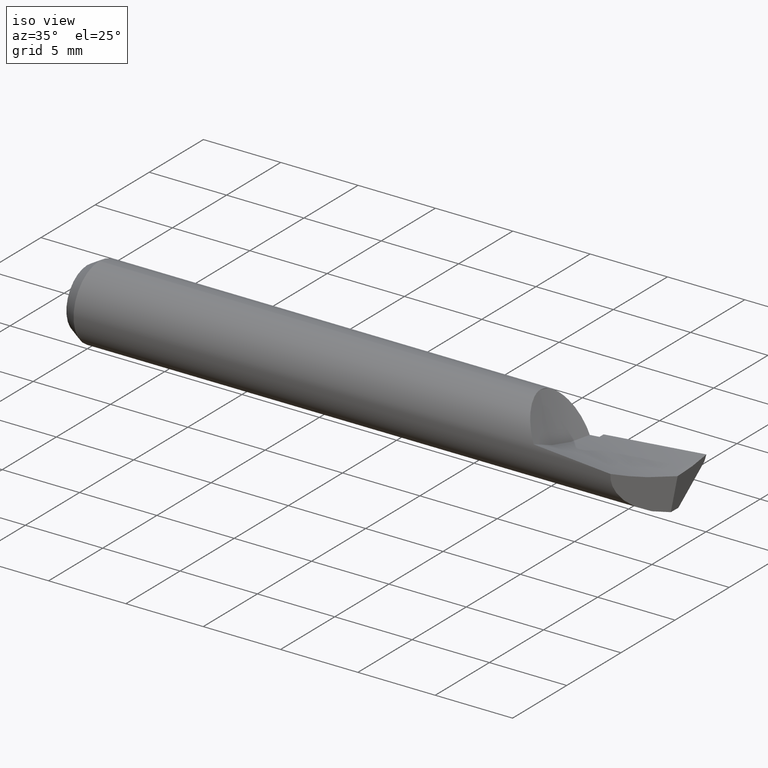
[diagram: clean part render]
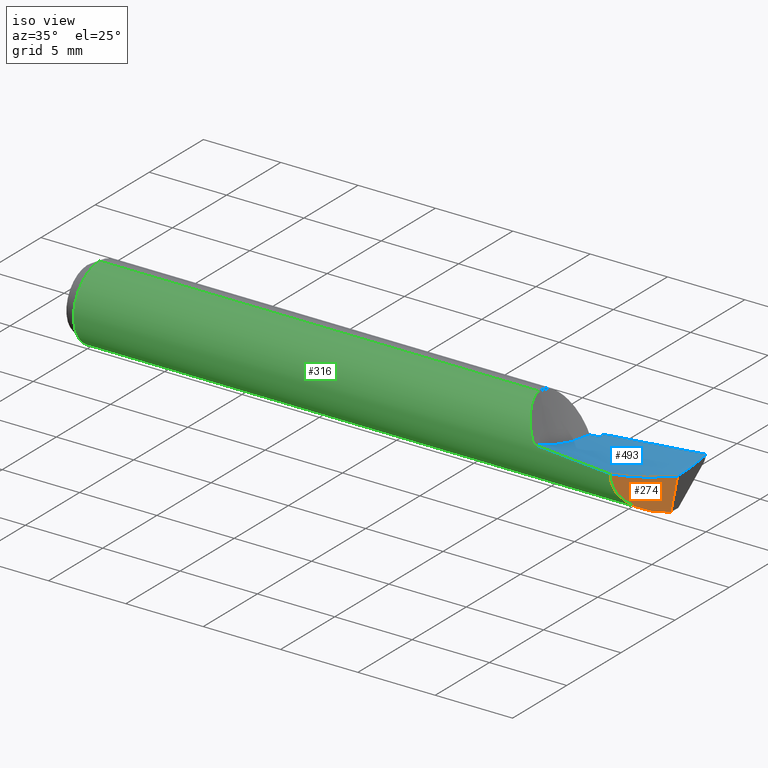
[diagram: same view with three faces highlighted in distinct colors, each labeled with its STEP entity id]
A machine part, iso view with three faces highlighted in distinct colors.
Their STEP definitions:

[orange] entity #274 — the highlighted planar face has unit normal (-0.7071, 0.7071, 0).
#37 = ORIENTED_EDGE ( 'NONE', *, *, #308, .T. ) ;
#48 = VERTEX_POINT ( 'NONE', #379 ) ;
#102 = DIRECTION ( 'NONE',  ( -0.7071067811865502373, 0.7071067811865447972, 0.000000000000000000 ) ) ;
#130 = EDGE_CURVE ( 'NONE', #48, #629, #428, .T. ) ;
#132 = ORIENTED_EDGE ( 'NONE', *, *, #296, .F. ) ;
#140 = PLANE ( 'NONE',  #382 ) ;
#198 = CARTESIAN_POINT ( 'NONE',  ( 1.394336912536108253, -0.09631308746389261044, -0.05083672434967974330 ) ) ;
#202 = EDGE_LOOP ( 'NONE', ( #132, #37, #462 ) ) ;
#205 = DIRECTION ( 'NONE',  ( -0.7071067811865447972, -0.7071067811865502373, 0.000000000000000000 ) ) ;
#250 = CARTESIAN_POINT ( 'NONE',  ( 1.487533092774547372, -0.003116907225453087980, -0.09359811637713616461 ) ) ;
#269 = CARTESIAN_POINT ( 'NONE',  ( 1.397117201850304857, -0.09353279814969597816, 0.004683820052929599069 ) ) ;
#274 = ADVANCED_FACE ( 'NONE', ( #674 ), #140, .F. ) ;
#296 = EDGE_CURVE ( 'NONE', #617, #629, #527, .T. ) ;
#308 = EDGE_CURVE ( 'NONE', #617, #48, #425, .T. ) ;
#327 = DIRECTION ( 'NONE',  ( 0.1220122463319276707, 0.1220122463319285866, 0.9850005195379714085 ) ) ;
#346 = CARTESIAN_POINT ( 'NONE',  ( 1.430128296819549893, -0.06052170318045099057, -0.007005743369842827410 ) ) ;
#350 = CARTESIAN_POINT ( 'NONE',  ( 1.382908368565247015, -0.1077416314347540566, -0.09999999999999999167 ) ) ;
#359 = CARTESIAN_POINT ( 'NONE',  ( 1.487533092774547372, -0.003116907225453087980, -0.09359811637713616461 ) ) ;
#379 = CARTESIAN_POINT ( 'NONE',  ( 1.497655768038555157, 0.007005768038554515374, -0.01187811945948918750 ) ) ;
#382 = AXIS2_PLACEMENT_3D ( 'NONE', #350, #102, #205 ) ;
#397 = CARTESIAN_POINT ( 'NONE',  ( 1.463644875374283227, -0.02700512462571743461, -0.01248061532669240102 ) ) ;
#399 = CARTESIAN_POINT ( 'NONE',  ( 1.497655768038555157, 0.007005768038554515374, -0.01187811945948918750 ) ) ;
#425 = LINE ( 'NONE', #540, #592 ) ;
#428 = B_SPLINE_CURVE_WITH_KNOTS ( 'NONE', 3,
 ( #399, #397, #346, #555 ),
 .UNSPECIFIED., .F., .F.,
 ( 4, 4 ),
 ( 8.350654211293213718E-05, 0.003719369236180139829 ),
 .UNSPECIFIED. ) ;
#462 = ORIENTED_EDGE ( 'NONE', *, *, #130, .T. ) ;
#527 =( BOUNDED_CURVE ( )  B_SPLINE_CURVE ( 3, ( #250, #667, #198, #269 ),
 .UNSPECIFIED., .F., .F. ) 
 B_SPLINE_CURVE_WITH_KNOTS ( ( 4, 4 ),
 ( 4.745677639848691953, 6.333220277242836538 ),
 .UNSPECIFIED. ) 
 CURVE ( )  GEOMETRIC_REPRESENTATION_ITEM ( )  RATIONAL_B_SPLINE_CURVE ( ( 1.000000000000000000, 0.8007742320596538121, 0.8007742320596538121, 1.000000000000000000 ) ) 
 REPRESENTATION_ITEM ( '' )  );
#540 = CARTESIAN_POINT ( 'NONE',  ( 1.483648606709209394, -0.007001393290791177448, -0.1249574340483064483 ) ) ;
#555 = CARTESIAN_POINT ( 'NONE',  ( 1.397117201850304857, -0.09353279814969597816, 0.004683820052929599069 ) ) ;
#592 = VECTOR ( 'NONE', #327, 39.37007874015748854 ) ;
#617 = VERTEX_POINT ( 'NONE', #359 ) ;
#629 = VERTEX_POINT ( 'NONE', #634 ) ;
#634 = CARTESIAN_POINT ( 'NONE',  ( 1.397117201850304857, -0.09353279814969597816, 0.004683820052929599069 ) ) ;
#667 = CARTESIAN_POINT ( 'NONE',  ( 1.431973775838467633, -0.05867622416153322334, -0.09174793772929316915 ) ) ;
#674 = FACE_OUTER_BOUND ( 'NONE', #202, .T. ) ;

[blue] entity #493 — the highlighted face is a freeform B-spline surface patch.
#3 = CARTESIAN_POINT ( 'NONE',  ( 1.499392605994886329, 0.09182044360717112053, -0.003761190601293689945 ) ) ;
#21 = CARTESIAN_POINT ( 'NONE',  ( 1.304444444444444962, 0.05141765096347571812, -0.02948195143761270925 ) ) ;
#25 = CARTESIAN_POINT ( 'NONE',  ( 1.202929359211318827, -0.06330286871536679183, 0.006143045300848167314 ) ) ;
#35 = ORIENTED_EDGE ( 'NONE', *, *, #245, .T. ) ;
#48 = VERTEX_POINT ( 'NONE', #379 ) ;
#55 =( BOUNDED_SURFACE ( )  B_SPLINE_SURFACE ( 3, 2, ( 
 ( #665, #348, #661, #298, #143 ),
 ( #499, #606, #560, #285, #301 ),
 ( #353, #21, #563, #90, #304 ),
 ( #508, #252, #457, #307, #178 ) ),
 .UNSPECIFIED., .F., .F., .T. ) 
 B_SPLINE_SURFACE_WITH_KNOTS ( ( 4, 4 ),
 ( 3, 2, 3 ),
 ( 0.000000000000000000, 1.000000000000000000 ),
 ( 0.000000000000000000, 0.5000000000000000000, 1.000000000000000000 ),
 .UNSPECIFIED. ) 
 GEOMETRIC_REPRESENTATION_ITEM ( )  RATIONAL_B_SPLINE_SURFACE ( (
 ( 1.000000000000000000, 0.9876883405951377704, 1.000000000000000000, 0.9876883405951377704, 1.000000000000000000),
 ( 0.9656170249359767865, 0.9537286770094286492, 0.9656170249359767865, 0.9537286770094286492, 0.9656170249359767865),
 ( 0.9656170249359767865, 0.9537286770094286492, 0.9656170249359767865, 0.9537286770094286492, 0.9656170249359767865),
 ( 1.000000000000000000, 0.9876883405951377704, 1.000000000000000000, 0.9876883405951377704, 1.000000000000000000) ) ) 
 REPRESENTATION_ITEM ( '' )  SURFACE ( )  );
#59 = CARTESIAN_POINT ( 'NONE',  ( 1.370718729444907691, 0.1084999999999999853, -0.01136076838170603856 ) ) ;
#61 = EDGE_CURVE ( 'NONE', #311, #254, #267, .T. ) ;
#62 = CARTESIAN_POINT ( 'NONE',  ( 1.298652350113993048, -0.09316285039222936548, 0.01207143284203172559 ) ) ;
#64 = CARTESIAN_POINT ( 'NONE',  ( 1.497655768038555157, 0.007005768038554515374, -0.01187811945948918750 ) ) ;
#71 = EDGE_CURVE ( 'NONE', #254, #48, #472, .T. ) ;
#77 = VERTEX_POINT ( 'NONE', #283 ) ;
#81 = CARTESIAN_POINT ( 'NONE',  ( 1.200193042709057911, -0.09159678206204575901, 0.01949988679965345209 ) ) ;
#88 = CARTESIAN_POINT ( 'NONE',  ( 1.240000000000000213, 0.09093235533035093354, -0.02239708137674528005 ) ) ;
#90 = CARTESIAN_POINT ( 'NONE',  ( 0.9133333333333349957, 0.03979066797984411735, -0.04392792998639220847 ) ) ;
#92 = EDGE_LOOP ( 'NONE', ( #562, #585, #35, #601, #456, #355, #524 ) ) ;
#103 = EDGE_CURVE ( 'NONE', #664, #435, #349, .T. ) ;
#104 =( BOUNDED_CURVE ( )  B_SPLINE_CURVE ( 3, ( #625, #257, #455, #88 ),
 .UNSPECIFIED., .F., .T. ) 
 B_SPLINE_CURVE_WITH_KNOTS ( ( 4, 4 ),
 ( 9.255808676291182749E-05, 0.0004782894125386870907 ),
 .UNSPECIFIED. ) 
 CURVE ( )  GEOMETRIC_REPRESENTATION_ITEM ( )  RATIONAL_B_SPLINE_CURVE ( ( 0.9805422023702108358, 0.9794517822317697631, 0.9784376960691193448, 0.9774999438822595810 ) ) 
 REPRESENTATION_ITEM ( '' )  );
#130 = EDGE_CURVE ( 'NONE', #48, #629, #428, .T. ) ;
#143 = CARTESIAN_POINT ( 'NONE',  ( 0.7177777777777798462, -0.1200748292999250927, 0.1043874820955170424 ) ) ;
#171 =( BOUNDED_CURVE ( )  B_SPLINE_CURVE ( 2, ( #368, #62, #638 ),
 .UNSPECIFIED., .F., .T. ) 
 B_SPLINE_CURVE_WITH_KNOTS ( ( 3, 3 ),
 ( 0.6173980248220553024, 0.8679066118161332666 ),
 .UNSPECIFIED. ) 
 CURVE ( )  GEOMETRIC_REPRESENTATION_ITEM ( )  RATIONAL_B_SPLINE_CURVE ( ( 0.9785522738925220843, 0.9753364756070597164, 0.9781958891234434628 ) ) 
 REPRESENTATION_ITEM ( '' )  );
#173 = EDGE_CURVE ( 'NONE', #77, #664, #293, .T. ) ;
#178 = CARTESIAN_POINT ( 'NONE',  ( 0.7177777777777798462, 0.1363835579169330459, -0.08194044288119670116 ) ) ;
#183 = CARTESIAN_POINT ( 'NONE',  ( 1.227790124694641882, 0.09071330555731095535, -0.02328642545694233415 ) ) ;
#193 = CARTESIAN_POINT ( 'NONE',  ( 1.215594912558480400, 0.09047690327886798167, -0.02417131508764828671 ) ) ;
#217 = CARTESIAN_POINT ( 'NONE',  ( 1.498113741625893836, 0.04115732881145446609, -0.01057558320799731159 ) ) ;
#222 = CARTESIAN_POINT ( 'NONE',  ( 1.498894889242270212, 0.07501483299892787449, -0.006620206759045534767 ) ) ;
#245 = EDGE_CURVE ( 'NONE', #311, #77, #104, .T. ) ;
#252 = CARTESIAN_POINT ( 'NONE',  ( 1.304444444444445184, 0.1606972725960162107, -0.01123090061018719617 ) ) ;
#253 = CARTESIAN_POINT ( 'NONE',  ( 1.500000000000000222, 0.1084999999999999992, 0.000000000000000000 ) ) ;
#254 = VERTEX_POINT ( 'NONE', #253 ) ;
#257 = CARTESIAN_POINT ( 'NONE',  ( 1.239999999999999991, 0.1010776689460062688, -0.02252625180451624243 ) ) ;
#267 =( BOUNDED_CURVE ( )  B_SPLINE_CURVE ( 2, ( #473, #59, #643 ),
 .UNSPECIFIED., .F., .T. ) 
 B_SPLINE_CURVE_WITH_KNOTS ( ( 3, 3 ),
 ( 0.6680663190920044237, 1.000000000000000000 ),
 .UNSPECIFIED. ) 
 CURVE ( )  GEOMETRIC_REPRESENTATION_ITEM ( )  RATIONAL_B_SPLINE_CURVE ( ( 0.9805422023702407008, 0.9779011347166750578, 0.9859596877570645512 ) ) 
 REPRESENTATION_ITEM ( '' )  );
#270 = CARTESIAN_POINT ( 'NONE',  ( 1.500000000000000222, 0.1084999999999999992, 0.000000000000000000 ) ) ;
#283 = CARTESIAN_POINT ( 'NONE',  ( 1.240000000000000213, 0.09093235533035093354, -0.02239708137674528005 ) ) ;
#285 = CARTESIAN_POINT ( 'NONE',  ( 0.9133333333333349957, -0.05892680970412268737, 0.006371137203487211263 ) ) ;
#293 =( BOUNDED_CURVE ( )  B_SPLINE_CURVE ( 2, ( #494, #183, #445 ),
 .UNSPECIFIED., .F., .T. ) 
 B_SPLINE_CURVE_WITH_KNOTS ( ( 3, 3 ),
 ( 0.3319336809084333928, 0.3630297608688256017 ),
 .UNSPECIFIED. ) 
 CURVE ( )  GEOMETRIC_REPRESENTATION_ITEM ( )  RATIONAL_B_SPLINE_CURVE ( ( 0.9774999438821363462, 0.9777465956879386466, 0.9780868586215527571 ) ) 
 REPRESENTATION_ITEM ( '' )  );
#298 = CARTESIAN_POINT ( 'NONE',  ( 0.9133333333333349957, -0.1366081822285111214, 0.08536949745978415771 ) ) ;
#301 = CARTESIAN_POINT ( 'NONE',  ( 0.7177777777777798462, -0.05650037319417050563, 0.01531991718997334669 ) ) ;
#304 = CARTESIAN_POINT ( 'NONE',  ( 0.7177777777777798462, 0.03202968257815186348, -0.04900093333530534945 ) ) ;
#307 = CARTESIAN_POINT ( 'NONE',  ( 0.9133333333333349957, 0.1493616491026159843, -0.06033940939105427587 ) ) ;
#311 = VERTEX_POINT ( 'NONE', #415 ) ;
#344 = FACE_OUTER_BOUND ( 'NONE', #92, .T. ) ;
#346 = CARTESIAN_POINT ( 'NONE',  ( 1.430128296819549893, -0.06052170318045099057, -0.007005743369842827410 ) ) ;
#348 = CARTESIAN_POINT ( 'NONE',  ( 1.304444444444445184, -0.1563027274039834602, 0.03897696697269068672 ) ) ;
#349 = B_SPLINE_CURVE_WITH_KNOTS ( 'NONE', 3,
 ( #193, #663, #600, #388, #25, #81 ),
 .UNSPECIFIED., .F., .F.,
 ( 4, 2, 4 ),
 ( 0.000000000000000000, 0.5000000000000000000, 1.000000000000000000 ),
 .UNSPECIFIED. ) ;
#353 = CARTESIAN_POINT ( 'NONE',  ( 1.500000000000000222, 0.05471458349321915021, -0.02081601275344908270 ) ) ;
#355 = ORIENTED_EDGE ( 'NONE', *, *, #403, .T. ) ;
#368 = CARTESIAN_POINT ( 'NONE',  ( 1.200193042709057911, -0.09159678206204575901, 0.01949988679965345209 ) ) ;
#379 = CARTESIAN_POINT ( 'NONE',  ( 1.497655768038555157, 0.007005768038554515374, -0.01187811945948918750 ) ) ;
#388 = CARTESIAN_POINT ( 'NONE',  ( 1.205461078765243554, -0.03340762941110839851, -0.004274625996444138785 ) ) ;
#397 = CARTESIAN_POINT ( 'NONE',  ( 1.463644875374283227, -0.02700512462571743461, -0.01248061532669240102 ) ) ;
#399 = CARTESIAN_POINT ( 'NONE',  ( 1.497655768038555157, 0.007005768038554515374, -0.01187811945948918750 ) ) ;
#403 = EDGE_CURVE ( 'NONE', #435, #629, #171, .T. ) ;
#415 = CARTESIAN_POINT ( 'NONE',  ( 1.240000000000000213, 0.1061466846906607003, -0.02247512690023042298 ) ) ;
#428 = B_SPLINE_CURVE_WITH_KNOTS ( 'NONE', 3,
 ( #399, #397, #346, #555 ),
 .UNSPECIFIED., .F., .F.,
 ( 4, 4 ),
 ( 8.350654211293213718E-05, 0.003719369236180139829 ),
 .UNSPECIFIED. ) ;
#435 = VERTEX_POINT ( 'NONE', #642 ) ;
#436 = CARTESIAN_POINT ( 'NONE',  ( 1.215594912558480400, 0.09047690327886798167, -0.02417131508764828671 ) ) ;
#445 = CARTESIAN_POINT ( 'NONE',  ( 1.215594912558480400, 0.09047690327886798167, -0.02417131508764828671 ) ) ;
#455 = CARTESIAN_POINT ( 'NONE',  ( 1.239999999999999991, 0.09600583268713319685, -0.02250031455102170438 ) ) ;
#456 = ORIENTED_EDGE ( 'NONE', *, *, #103, .T. ) ;
#457 = CARTESIAN_POINT ( 'NONE',  ( 1.108888888888889923, 0.1550294608493161252, -0.03578515500062074556 ) ) ;
#472 = B_SPLINE_CURVE_WITH_KNOTS ( 'NONE', 3,
 ( #270, #3, #222, #217, #480, #64 ),
 .UNSPECIFIED., .F., .F.,
 ( 4, 2, 4 ),
 ( 1.390217896785067265E-20, 0.001298834698926962759, 0.002597669397853925519 ),
 .UNSPECIFIED. ) ;
#473 = CARTESIAN_POINT ( 'NONE',  ( 1.240000000000000213, 0.1061466846906607003, -0.02247512690023042298 ) ) ;
#480 = CARTESIAN_POINT ( 'NONE',  ( 1.497830013075208910, 0.02404371989727082520, -0.01166998164447420432 ) ) ;
#493 = ADVANCED_FACE ( 'NONE', ( #344 ), #55, .T. ) ;
#494 = CARTESIAN_POINT ( 'NONE',  ( 1.240000000000000213, 0.09093235533035093354, -0.02239708137674528005 ) ) ;
#499 = CARTESIAN_POINT ( 'NONE',  ( 1.500000000000000222, -0.05471458349321896980, -0.02081601275344908270 ) ) ;
#508 = CARTESIAN_POINT ( 'NONE',  ( 1.500000000000000222, 0.1584999999999999187, 0.01387303318125179125 ) ) ;
#524 = ORIENTED_EDGE ( 'NONE', *, *, #130, .F. ) ;
#555 = CARTESIAN_POINT ( 'NONE',  ( 1.397117201850304857, -0.09353279814969597816, 0.004683820052929599069 ) ) ;
#560 = CARTESIAN_POINT ( 'NONE',  ( 1.108888888888889923, -0.05846916286354254116, -0.002889468432899133278 ) ) ;
#562 = ORIENTED_EDGE ( 'NONE', *, *, #71, .F. ) ;
#563 = CARTESIAN_POINT ( 'NONE',  ( 1.108888888888889923, 0.04560415947165991080, -0.03670494071200245539 ) ) ;
#585 = ORIENTED_EDGE ( 'NONE', *, *, #61, .F. ) ;
#600 = CARTESIAN_POINT ( 'NONE',  ( 1.210526309159210889, 0.02787531357983579275, -0.01890264624611025582 ) ) ;
#601 = ORIENTED_EDGE ( 'NONE', *, *, #173, .T. ) ;
#606 = CARTESIAN_POINT ( 'NONE',  ( 1.304444444444444962, -0.05801151602296240190, -0.01215007406928548216 ) ) ;
#625 = CARTESIAN_POINT ( 'NONE',  ( 1.240000000000000213, 0.1061466846906607142, -0.02247512690023042298 ) ) ;
#629 = VERTEX_POINT ( 'NONE', #634 ) ;
#634 = CARTESIAN_POINT ( 'NONE',  ( 1.397117201850304857, -0.09353279814969597816, 0.004683820052929599069 ) ) ;
#638 = CARTESIAN_POINT ( 'NONE',  ( 1.397117201850304857, -0.09353279814969597816, 0.004683820052929599069 ) ) ;
#642 = CARTESIAN_POINT ( 'NONE',  ( 1.200193042709057911, -0.09159678206204575901, 0.01949988679965345209 ) ) ;
#643 = CARTESIAN_POINT ( 'NONE',  ( 1.500000000000000222, 0.1084999999999999992, 0.000000000000000000 ) ) ;
#661 = CARTESIAN_POINT ( 'NONE',  ( 1.108888888888889923, -0.1464554548162472769, 0.06217323221623742568 ) ) ;
#663 = CARTESIAN_POINT ( 'NONE',  ( 1.213059819998397071, 0.05925281071930980220, -0.02311055806310812963 ) ) ;
#664 = VERTEX_POINT ( 'NONE', #436 ) ;
#665 = CARTESIAN_POINT ( 'NONE',  ( 1.500000000000000222, -0.1584999999999997522, 0.01387303318125172359 ) ) ;

[green] entity #316 — the highlighted cylindrical surface (partial cylindrical patch) has radius 2.3787 mm, axis along (-1, -0, -0).
#2 = DIRECTION ( 'NONE',  ( -1.000000000000000000, -0.000000000000000000, -0.000000000000000000 ) ) ;
#7 =( BOUNDED_CURVE ( )  B_SPLINE_CURVE ( 3, ( #621, #608, #144, #150 ),
 .UNSPECIFIED., .F., .T. ) 
 B_SPLINE_CURVE_WITH_KNOTS ( ( 4, 4 ),
 ( 6.212232684215154066, 6.245521343679157233 ),
 .UNSPECIFIED. ) 
 CURVE ( )  GEOMETRIC_REPRESENTATION_ITEM ( )  RATIONAL_B_SPLINE_CURVE ( ( 1.000000000000000000, 0.9999076575611176576, 0.9999076575611176576, 1.000000000000000000 ) ) 
 REPRESENTATION_ITEM ( '' )  );
#19 = DIRECTION ( 'NONE',  ( 0.000000000000000000, 0.000000000000000000, 1.000000000000000000 ) ) ;
#36 = CARTESIAN_POINT ( 'NONE',  ( 1.239999999999999547, 0.000000000000000000, -0.09364999999999999714 ) ) ;
#39 = CARTESIAN_POINT ( 'NONE',  ( 1.199999999999999956, 0.000000000000000000, -0.09364999999999999714 ) ) ;
#44 = ORIENTED_EDGE ( 'NONE', *, *, #296, .T. ) ;
#46 = CARTESIAN_POINT ( 'NONE',  ( 1.167726105917510582, -0.05622133668068131362, 0.07491812423433109880 ) ) ;
#51 = CARTESIAN_POINT ( 'NONE',  ( 1.160267250213739887, -0.04047724806400673087, 0.08466018272255967925 ) ) ;
#56 = CARTESIAN_POINT ( 'NONE',  ( 0.03057069675359059061, 0.000000000000000000, 0.000000000000000000 ) ) ;
#62 = CARTESIAN_POINT ( 'NONE',  ( 1.298652350113993048, -0.09316285039222936548, 0.01207143284203172559 ) ) ;
#84 = AXIS2_PLACEMENT_3D ( 'NONE', #169, #2, #635 ) ;
#85 = CARTESIAN_POINT ( 'NONE',  ( 0.03057069675359059061, 1.146881727401496266E-17, -0.09364999999999999714 ) ) ;
#89 = EDGE_CURVE ( 'NONE', #159, #100, #139, .T. ) ;
#91 = CARTESIAN_POINT ( 'NONE',  ( 1.164964881159045396, -0.05084867784880137825, 0.07870355941290420321 ) ) ;
#100 = VERTEX_POINT ( 'NONE', #236 ) ;
#139 = CIRCLE ( 'NONE', #233, 0.09364999999999999714 ) ;
#144 = CARTESIAN_POINT ( 'NONE',  ( 1.487537909818598125, -0.002078273994535322425, -0.09363270386187780292 ) ) ;
#145 = VERTEX_POINT ( 'NONE', #491 ) ;
#146 = CARTESIAN_POINT ( 'NONE',  ( 1.166899447017619051, -0.05465046207729526428, 0.07606594800267757472 ) ) ;
#150 = CARTESIAN_POINT ( 'NONE',  ( 1.487533092774547372, -0.003116907225453087980, -0.09359811637713616461 ) ) ;
#155 = CARTESIAN_POINT ( 'NONE',  ( 1.150325259475817097, -0.009300277287042121865, 0.09364995429079847611 ) ) ;
#159 = VERTEX_POINT ( 'NONE', #85 ) ;
#165 = CARTESIAN_POINT ( 'NONE',  ( 1.148853733171861569, -8.222118152487938208E-07, 0.09365456280322455307 ) ) ;
#169 = CARTESIAN_POINT ( 'NONE',  ( 0.000000000000000000, 0.000000000000000000, 0.000000000000000000 ) ) ;
#171 =( BOUNDED_CURVE ( )  B_SPLINE_CURVE ( 2, ( #368, #62, #638 ),
 .UNSPECIFIED., .F., .T. ) 
 B_SPLINE_CURVE_WITH_KNOTS ( ( 3, 3 ),
 ( 0.6173980248220553024, 0.8679066118161332666 ),
 .UNSPECIFIED. ) 
 CURVE ( )  GEOMETRIC_REPRESENTATION_ITEM ( )  RATIONAL_B_SPLINE_CURVE ( ( 0.9785522738925220843, 0.9753364756070597164, 0.9781958891234434628 ) ) 
 REPRESENTATION_ITEM ( '' )  );
#181 = DIRECTION ( 'NONE',  ( 1.000000000000000000, -0.000000000000000000, -0.000000000000000000 ) ) ;
#182 = CARTESIAN_POINT ( 'NONE',  ( 0.000000000000000000, 1.146881727401496266E-17, -0.09364999999999999714 ) ) ;
#187 = EDGE_CURVE ( 'NONE', #435, #568, #470, .T. ) ;
#190 = CARTESIAN_POINT ( 'NONE',  ( 1.193124300786494008, -0.08870291174945742207, 0.03325054257018153492 ) ) ;
#198 = CARTESIAN_POINT ( 'NONE',  ( 1.394336912536108253, -0.09631308746389261044, -0.05083672434967974330 ) ) ;
#201 = CARTESIAN_POINT ( 'NONE',  ( 1.158214927748086209, -0.03519650015763708950, 0.08695964677823084243 ) ) ;
#209 = CARTESIAN_POINT ( 'NONE',  ( 1.168921519492841066, -0.05838966857612342548, 0.07321969953285872856 ) ) ;
#233 = AXIS2_PLACEMENT_3D ( 'NONE', #56, #372, #19 ) ;
#236 = CARTESIAN_POINT ( 'NONE',  ( 0.03057069675359059061, 0.000000000000000000, 0.09364999999999999714 ) ) ;
#250 = CARTESIAN_POINT ( 'NONE',  ( 1.487533092774547372, -0.003116907225453087980, -0.09359811637713616461 ) ) ;
#260 = ORIENTED_EDGE ( 'NONE', *, *, #403, .F. ) ;
#269 = CARTESIAN_POINT ( 'NONE',  ( 1.397117201850304857, -0.09353279814969597816, 0.004683820052929599069 ) ) ;
#272 = VECTOR ( 'NONE', #544, 39.37007874015748143 ) ;
#279 = EDGE_CURVE ( 'NONE', #145, #617, #7, .T. ) ;
#295 = CARTESIAN_POINT ( 'NONE',  ( 1.176653163846027139, -0.07108318674311234209, 0.06187157980703892474 ) ) ;
#296 = EDGE_CURVE ( 'NONE', #617, #629, #527, .T. ) ;
#299 = CARTESIAN_POINT ( 'NONE',  ( 1.186920597602683092, -0.08303519900622281791, 0.04456531780849256469 ) ) ;
#300 = ORIENTED_EDGE ( 'NONE', *, *, #89, .F. ) ;
#303 = VERTEX_POINT ( 'NONE', #36 ) ;
#316 = ADVANCED_FACE ( 'NONE', ( #631 ), #479, .T. ) ;
#335 = CARTESIAN_POINT ( 'NONE',  ( 1.169225650606404709, -0.05893110837954828457, 0.07278470785884573468 ) ) ;
#357 = CARTESIAN_POINT ( 'NONE',  ( 1.152848608369791972, -0.01951221009786380592, 0.09225725620059220533 ) ) ;
#358 = ORIENTED_EDGE ( 'NONE', *, *, #484, .T. ) ;
#359 = CARTESIAN_POINT ( 'NONE',  ( 1.487533092774547372, -0.003116907225453087980, -0.09359811637713616461 ) ) ;
#363 = CARTESIAN_POINT ( 'NONE',  ( 1.148853733171861569, -8.222118152487938208E-07, 0.09365456280322455307 ) ) ;
#368 = CARTESIAN_POINT ( 'NONE',  ( 1.200193042709057911, -0.09159678206204575901, 0.01949988679965345209 ) ) ;
#372 = DIRECTION ( 'NONE',  ( -1.000000000000000000, -0.000000000000000000, -0.000000000000000000 ) ) ;
#385 = LINE ( 'NONE', #603, #620 ) ;
#395 = ORIENTED_EDGE ( 'NONE', *, *, #505, .F. ) ;
#403 = EDGE_CURVE ( 'NONE', #435, #629, #171, .T. ) ;
#404 = ORIENTED_EDGE ( 'NONE', *, *, #279, .T. ) ;
#406 = CARTESIAN_POINT ( 'NONE',  ( 1.168578502057592727, -0.05777139929222735448, 0.07370850168012968440 ) ) ;
#410 = ORIENTED_EDGE ( 'NONE', *, *, #502, .T. ) ;
#433 = LINE ( 'NONE', #39, #535 ) ;
#435 = VERTEX_POINT ( 'NONE', #642 ) ;
#451 = CARTESIAN_POINT ( 'NONE',  ( 1.169408579989109187, -0.05925361579904363935, 0.07252248217185140733 ) ) ;
#470 = B_SPLINE_CURVE_WITH_KNOTS ( 'NONE', 3,
 ( #659, #190, #299, #295, #500, #451, #335, #545, #209, #406, #46, #146, #91, #571, #51, #201, #357, #155, #363 ),
 .UNSPECIFIED., .F., .F.,
 ( 4, 2, 2, 2, 2, 1, 2, 2, 2, 4 ),
 ( 0.000000000000000000, 0.2392568256852724562, 0.4785136513705449124, 0.4934672029758750411, 0.5009439787785399112, 0.5084207545812047258, 0.5383278577918639840, 0.5981420642131817234, 0.7177704770558167580, 0.9570273027410860500 ),
 .UNSPECIFIED. ) ;
#479 = CYLINDRICAL_SURFACE ( 'NONE', #84, 0.09364999999999999714 ) ;
#484 = EDGE_CURVE ( 'NONE', #303, #145, #433, .T. ) ;
#491 = CARTESIAN_POINT ( 'NONE',  ( 1.487553922861389877, 0.000000000000000000, -0.09364999999999999714 ) ) ;
#500 = CARTESIAN_POINT ( 'NONE',  ( 1.172589433273182102, -0.06480129520882427219, 0.06794788061313340732 ) ) ;
#502 = EDGE_CURVE ( 'NONE', #568, #100, #385, .T. ) ;
#505 = EDGE_CURVE ( 'NONE', #303, #159, #558, .T. ) ;
#527 =( BOUNDED_CURVE ( )  B_SPLINE_CURVE ( 3, ( #250, #667, #198, #269 ),
 .UNSPECIFIED., .F., .F. ) 
 B_SPLINE_CURVE_WITH_KNOTS ( ( 4, 4 ),
 ( 4.745677639848691953, 6.333220277242836538 ),
 .UNSPECIFIED. ) 
 CURVE ( )  GEOMETRIC_REPRESENTATION_ITEM ( )  RATIONAL_B_SPLINE_CURVE ( ( 1.000000000000000000, 0.8007742320596538121, 0.8007742320596538121, 1.000000000000000000 ) ) 
 REPRESENTATION_ITEM ( '' )  );
#535 = VECTOR ( 'NONE', #181, 39.37007874015748143 ) ;
#544 = DIRECTION ( 'NONE',  ( -1.000000000000000000, -0.000000000000000000, -0.000000000000000000 ) ) ;
#545 = CARTESIAN_POINT ( 'NONE',  ( 1.168957525983356671, -0.05845340694801670622, 0.07316804903374457547 ) ) ;
#549 = EDGE_LOOP ( 'NONE', ( #395, #358, #404, #44, #260, #672, #410, #300 ) ) ;
#558 = LINE ( 'NONE', #182, #272 ) ;
#568 = VERTEX_POINT ( 'NONE', #165 ) ;
#571 = CARTESIAN_POINT ( 'NONE',  ( 1.163741057921552580, -0.04827204494519943961, 0.08030560434472631959 ) ) ;
#603 = CARTESIAN_POINT ( 'NONE',  ( 0.000000000000000000, 0.000000000000000000, 0.09364999999999999714 ) ) ;
#608 = CARTESIAN_POINT ( 'NONE',  ( 1.487544853822105217, -0.001039208969585736150, -0.09364999999999999714 ) ) ;
#617 = VERTEX_POINT ( 'NONE', #359 ) ;
#620 = VECTOR ( 'NONE', #651, 39.37007874015748143 ) ;
#621 = CARTESIAN_POINT ( 'NONE',  ( 1.487553922861389877, 0.000000000000000000, -0.09364999999999999714 ) ) ;
#629 = VERTEX_POINT ( 'NONE', #634 ) ;
#631 = FACE_OUTER_BOUND ( 'NONE', #549, .T. ) ;
#634 = CARTESIAN_POINT ( 'NONE',  ( 1.397117201850304857, -0.09353279814969597816, 0.004683820052929599069 ) ) ;
#635 = DIRECTION ( 'NONE',  ( 0.000000000000000000, 0.000000000000000000, 1.000000000000000000 ) ) ;
#638 = CARTESIAN_POINT ( 'NONE',  ( 1.397117201850304857, -0.09353279814969597816, 0.004683820052929599069 ) ) ;
#642 = CARTESIAN_POINT ( 'NONE',  ( 1.200193042709057911, -0.09159678206204575901, 0.01949988679965345209 ) ) ;
#651 = DIRECTION ( 'NONE',  ( -1.000000000000000000, -0.000000000000000000, -0.000000000000000000 ) ) ;
#659 = CARTESIAN_POINT ( 'NONE',  ( 1.200193042709057911, -0.09159678206204575901, 0.01949988679965345209 ) ) ;
#667 = CARTESIAN_POINT ( 'NONE',  ( 1.431973775838467633, -0.05867622416153322334, -0.09174793772929316915 ) ) ;
#672 = ORIENTED_EDGE ( 'NONE', *, *, #187, .T. ) ;